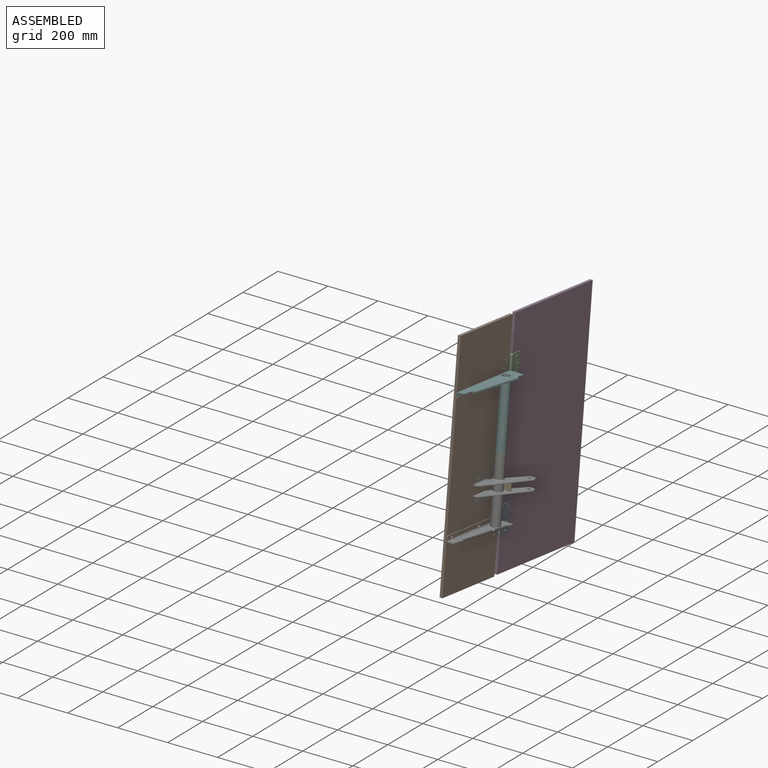
[diagram: assembled view]
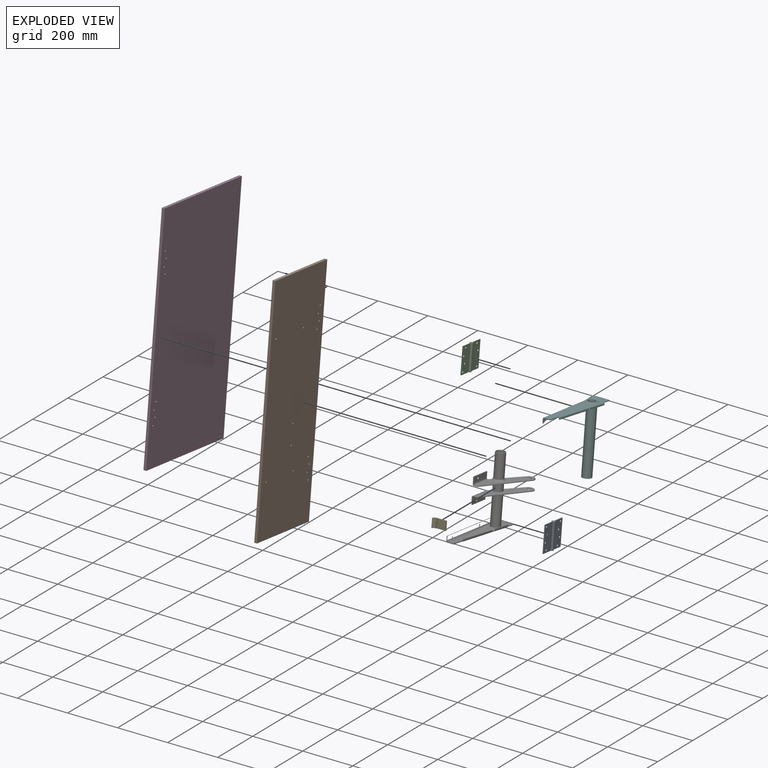
[diagram: exploded view]
GUIDED TOUR — MATED ASSEMBLY WITH SUBASSEMBLIES (Onshape document 43f97b9f7a8c3bc5046a47ca, AutoMate assembly 43f97b9f7a8c3bc5046a47ca_c467d1820c0d632e73bb7d85_4839b0d3525e1f33f01944b1_default)

This assembly has 11 component occurrences arranged in 7 top-level units: 5 individual components plus 2 subassemblies (S0, S1). The tour has two levels: first the top level, where each subassembly is treated as one rigid unit; then each subassembly is toured internally in its own section (nesting deeper than one subassembly level is flattened into its subassembly's section).

Components are labeled P0..P10 across the whole record; subassembly units are labeled S0..S1. A mate is a constraint between two units; its type names the relative motion it leaves free:
  CYLINDRICAL — leaves both rotation about and translation along the listed axis free,
  PARALLEL — keeps the two listed directions parallel.
Axis/direction vectors are unit vectors and 'through' points are millimeter coordinates, both in the assembly's world frame.

TOP-LEVEL MATES (between units; each subassembly's internal mates are listed in its own section)
  1. CYLINDRICAL "Cylindrical 9": P7 <-> S1, axis (-1.000, 0.000, 0.000) through (-171.86, -400.85, 621.26) mm
  2. CYLINDRICAL "Cylindrical 1": S0 <-> P3, axis (-1.000, 0.000, 0.000) through (-174.66, -400.32, 63.24) mm
  3. CYLINDRICAL "Cylindrical 3": S1 <-> P3, axis (-1.000, 0.000, 0.000) through (-174.66, -331.63, 585.66) mm
  4. CYLINDRICAL "Cylindrical 11": P10 <-> S0, axis (-1.000, 0.000, 0.000) through (-171.86, -458.17, 125.63) mm
  5. CYLINDRICAL "Cylindrical 2": S0 <-> P3, axis (-1.000, 0.000, 0.000) through (-174.66, -382.64, 144.48) mm
  6. CYLINDRICAL "Cylindrical 12": P7 <-> P10, axis (0.000, -0.115, -0.993) through (-143.29, -464.18, 377.68) mm
  7. CYLINDRICAL "Cylindrical 8": S0 <-> P1, axis (-1.000, 0.000, 0.000) through (-174.66, -463.20, 153.75) mm
  8. CYLINDRICAL "Cylindrical 5": S1 <-> P1, axis (-1.000, 0.000, 0.000) through (-174.66, -394.49, 676.27) mm
  9. CYLINDRICAL "Cylindrical 6": P1 <-> S1, axis (1.000, 0.000, 0.000) through (-171.86, -412.17, 595.03) mm
  10. CYLINDRICAL "Cylindrical 4": P3 <-> S1, axis (1.000, 0.000, 0.000) through (-174.66, -330.30, 668.80) mm
  11. CYLINDRICAL "Cylindrical 7": S0 <-> P1, axis (-1.000, 0.000, 0.000) through (-174.66, -464.53, 70.61) mm
  12. CYLINDRICAL "Cylindrical 10": P7 <-> P1, axis (-1.000, 0.000, 0.000) through (-171.87, -646.86, 649.70) mm
  13. PARALLEL "Parallel 1": P10 <-> P5, direction (0.000, 0.115, 0.993) through (-120.14, -474.88, 242.62) mm

TOP-LEVEL ASSEMBLY ORDER
  1. P10 — the base component [order verified]
  2. P5 [order verified]
  3. S0 [order verified]
  4. P7 [order verified]
  5. S1 [order verified]
  6. P1 [order verified]
  7. P3 [order verified]
Order-tag legend:
  [order verified] — this step's position reverses a verified removal order: the component was checked to insert without passing through the ones already placed.

Of the 11 component occurrences, 6 carry the full construction recipe — the FeatureScript program that regenerates the part's solid from scratch; the rest are supplied as boundary geometry only. Each toured unit is shown spotlighted twice — assembled, then exploded with a leader line back to its socket (green = recipe-attached component, orange = geometry-only, blue = subassembly unit; the rest desaturated gray).
NOTE — this tour is split across 2 documents so each fits a 32k-token context. This is document 1: the component sections continue in the remaining 1 document, each repeating the header above.
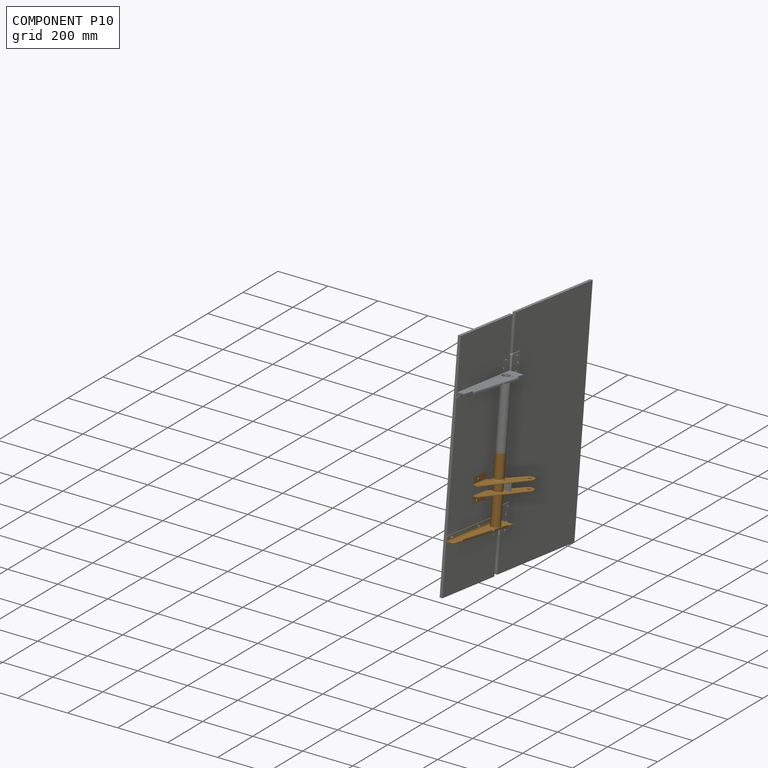
[diagram: component P10 — assembled]
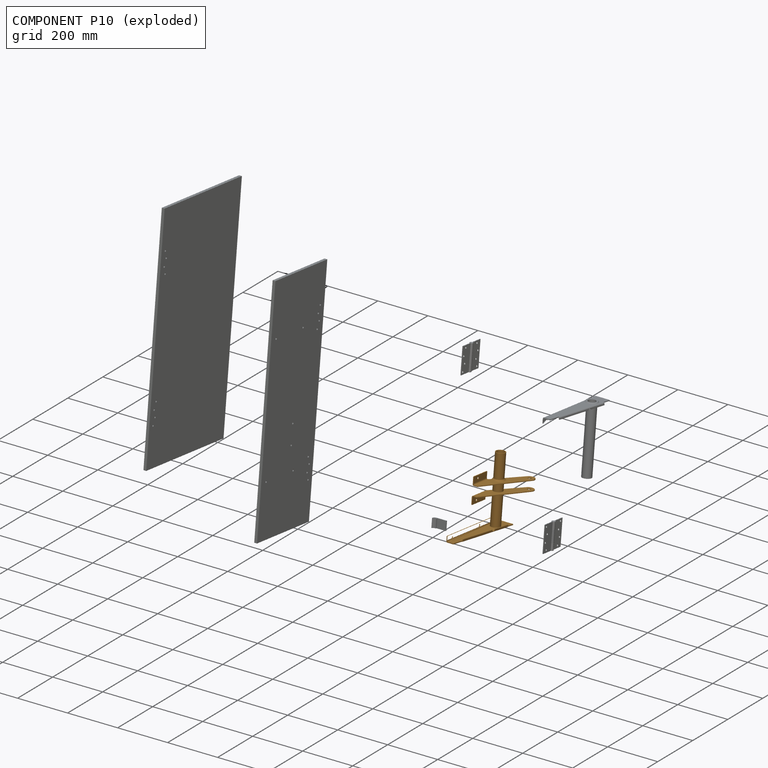
[diagram: component P10 — exploded]
COMPONENT P10 — geometry summary (no construction recipe available for this part):
  bounding box: 421.7 x 265.2 x 116.4 mm
  B-rep topology: 0 solids, 77 faces, 474 edges
  volume: 230272 mm^3 (2% of its bounding box)
Held by: CYLINDRICAL mate "Cylindrical 11" to P0; CYLINDRICAL mate "Cylindrical 12" to P7; PARALLEL mate "Parallel 1" to P5.
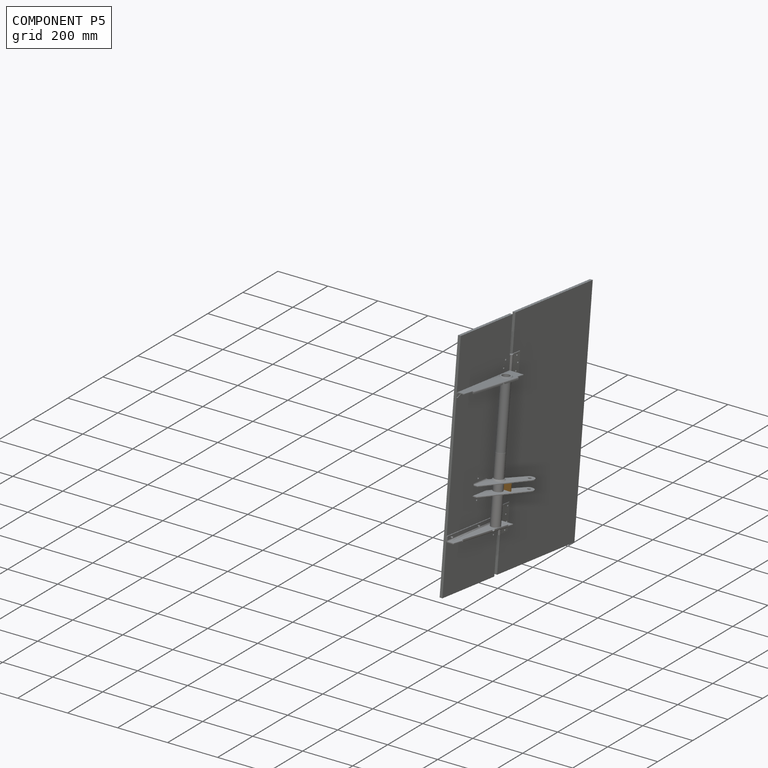
[diagram: component P5 — assembled]
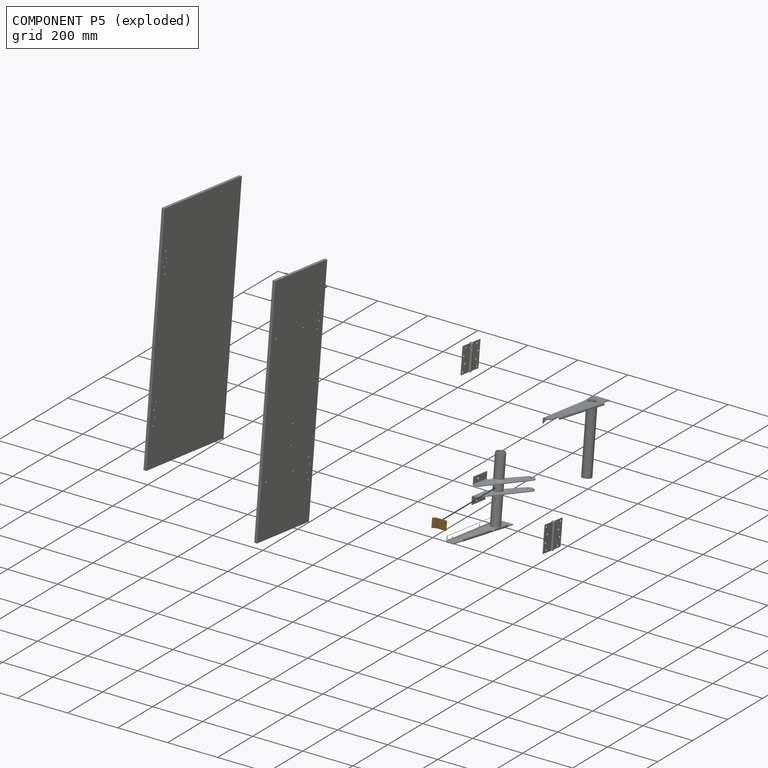
[diagram: component P5 — exploded]
COMPONENT P5 — geometry summary (no construction recipe available for this part):
  bounding box: 50.8 x 34.9 x 13.1 mm
  B-rep topology: 1 solid, 9 faces, 42 edges
  volume: 7441 mm^3 (32% of its bounding box)
  symmetry: mirror-symmetric across its y mid-plane
Held by: PARALLEL mate "Parallel 1" to P10.
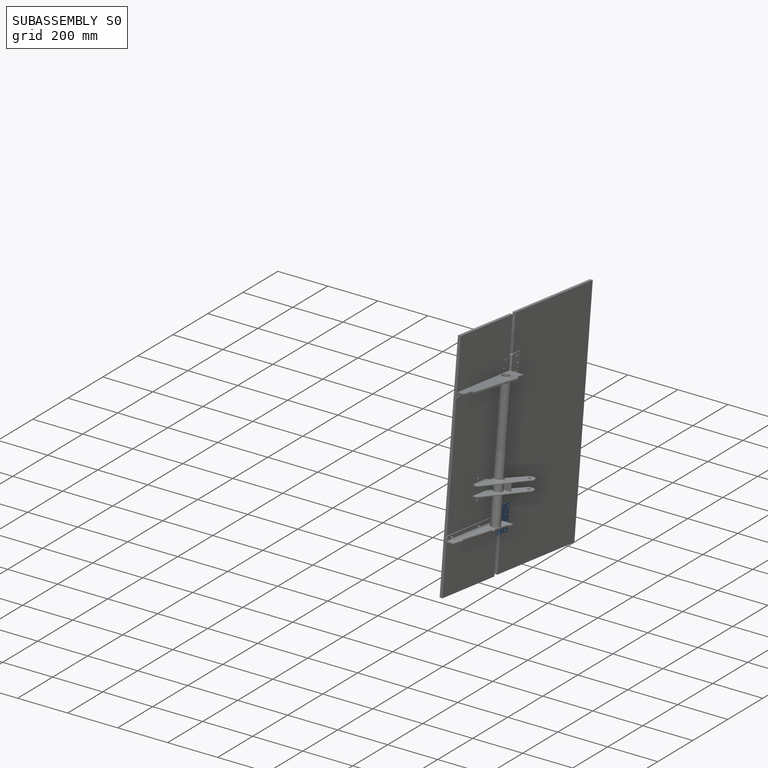
[diagram: subassembly S0 — assembled]
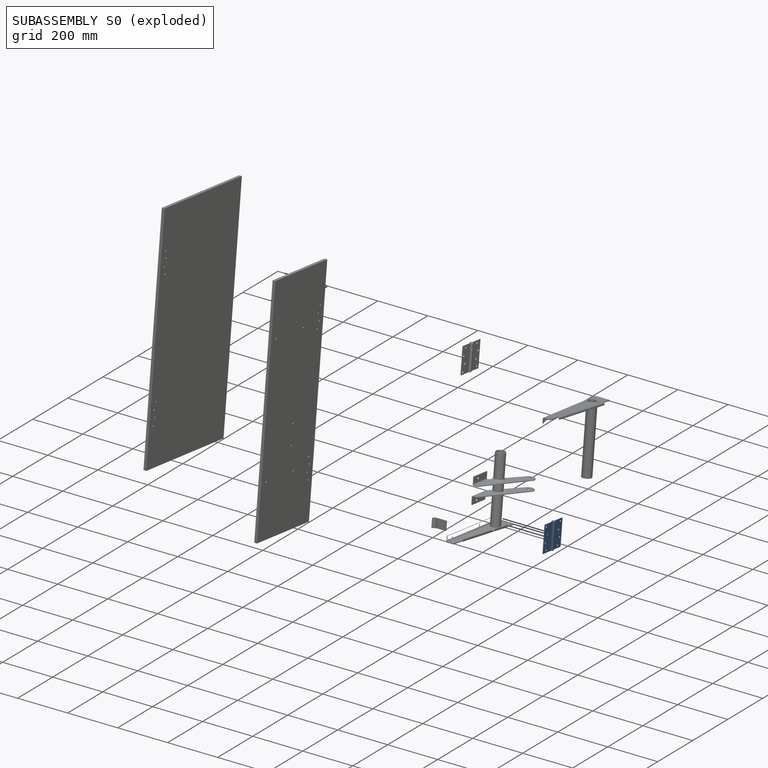
[diagram: subassembly S0 — exploded]
SUBASSEMBLY S0 — 3 components (P0, P6, P9), of which 2 recipe-attached; toured below.
Held by: CYLINDRICAL mate "Cylindrical 1" to P3; CYLINDRICAL mate "Cylindrical 11" to P10; CYLINDRICAL mate "Cylindrical 2" to P3; CYLINDRICAL mate "Cylindrical 8" to P1; CYLINDRICAL mate "Cylindrical 7" to P1.
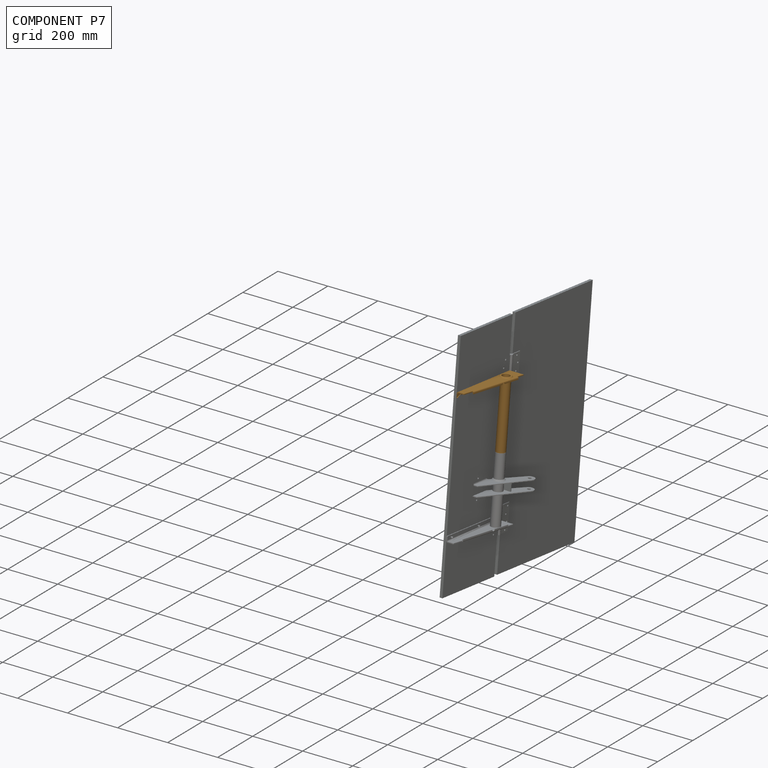
[diagram: component P7 — assembled]
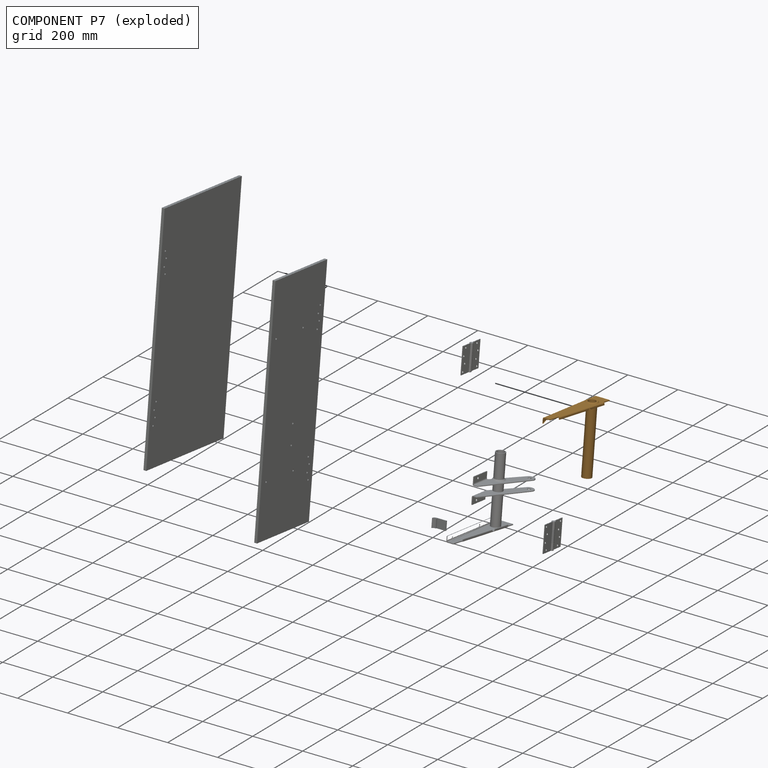
[diagram: component P7 — exploded]
COMPONENT P7 — geometry summary (no construction recipe available for this part):
  bounding box: 421.7 x 265.2 x 69.6 mm
  B-rep topology: 0 solids, 39 faces, 277 edges
  volume: 186237 mm^3 (2% of its bounding box)
Held by: CYLINDRICAL mate "Cylindrical 9" to P2; CYLINDRICAL mate "Cylindrical 12" to P10; CYLINDRICAL mate "Cylindrical 10" to P1.
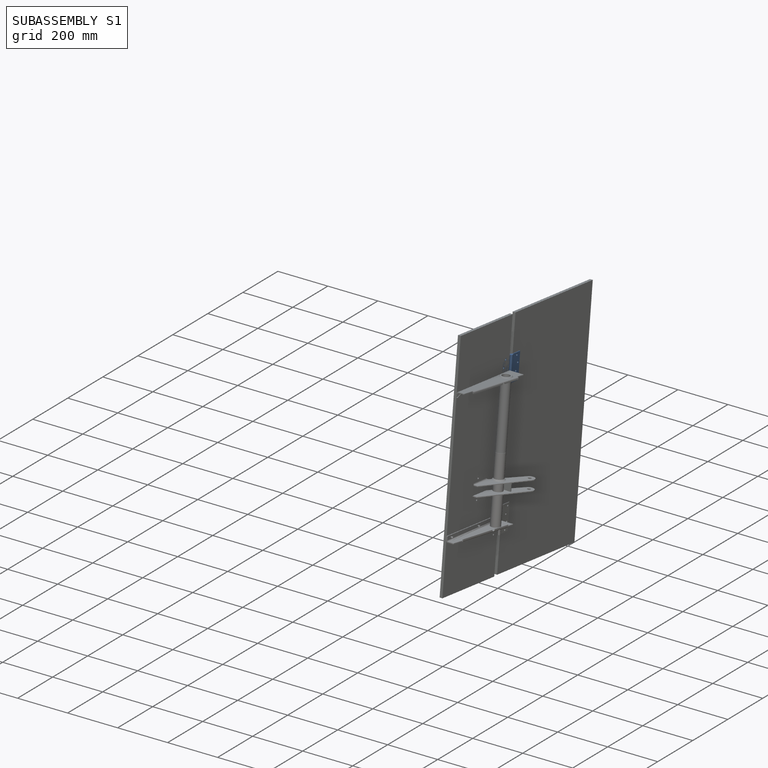
[diagram: subassembly S1 — assembled]
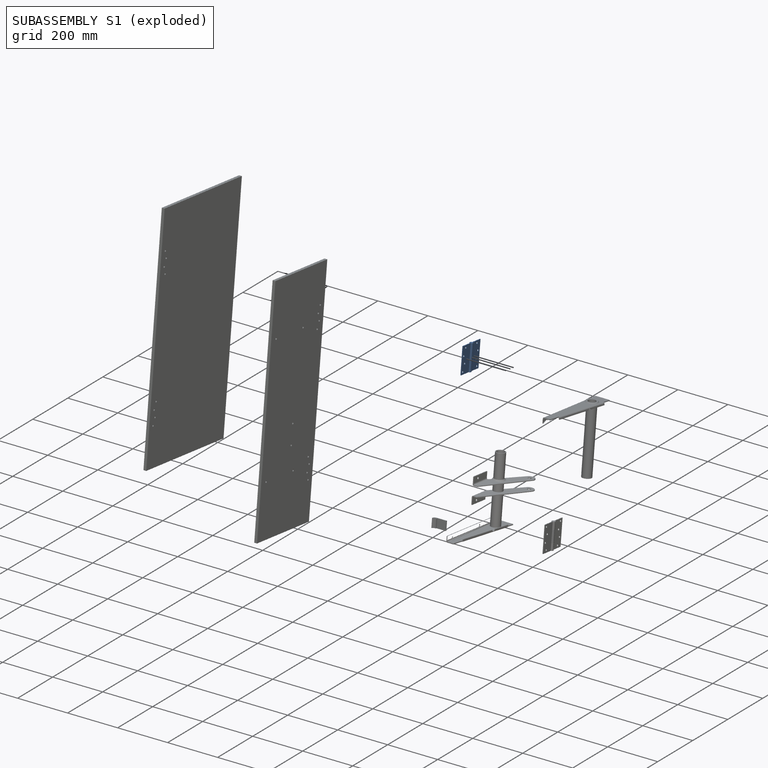
[diagram: subassembly S1 — exploded]
SUBASSEMBLY S1 — 3 components (P2, P4, P8), of which 2 recipe-attached; toured below.
Held by: CYLINDRICAL mate "Cylindrical 9" to P7; CYLINDRICAL mate "Cylindrical 3" to P3; CYLINDRICAL mate "Cylindrical 5" to P1; CYLINDRICAL mate "Cylindrical 6" to P1; CYLINDRICAL mate "Cylindrical 4" to P3.
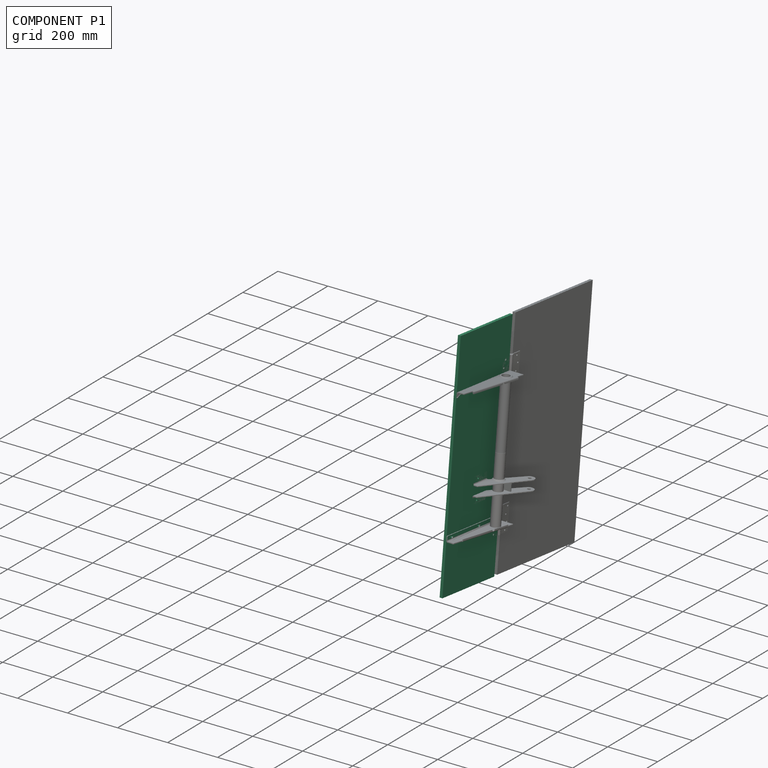
[diagram: component P1 — assembled]
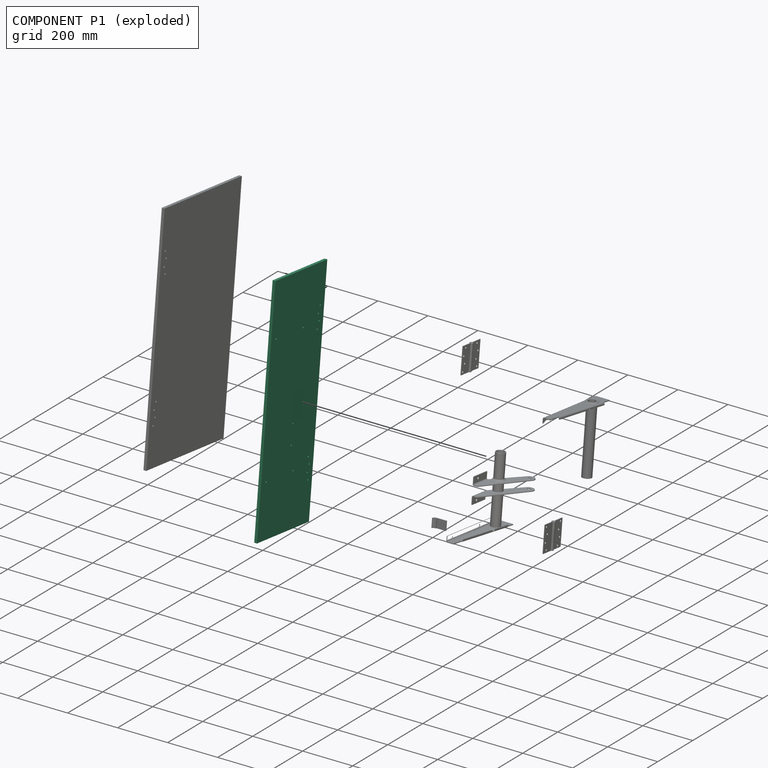
[diagram: component P1 — exploded]
COMPONENT P1 — recipe-attached (CADFS 00646358, mesh-verified: the recipe's output STEP matches this component's geometry to below the mesh-comparison resolution (tessellation chordal tolerance ~1.44 mm)).
Held by: CYLINDRICAL mate "Cylindrical 8" to P0; CYLINDRICAL mate "Cylindrical 5" to P2; CYLINDRICAL mate "Cylindrical 6" to P2; CYLINDRICAL mate "Cylindrical 7" to P0; CYLINDRICAL mate "Cylindrical 10" to P7.
Construction recipe (FeatureScript — the CAD program that rebuilds this solid; sketch coordinates are in the units given by the * unit suffixes, e.g. mm):

FeatureScript 1511;
import(path : "onshape/std/geometry.fs", version : "1511.0");
import(path : "onshape/std/common.fs", version : "1511.0");
const mm = millimeter;
const VERTEX = EntityType.VERTEX;
const EDGE = EntityType.EDGE;
const FACE = EntityType.FACE;
const BODY = EntityType.BODY;
function v(x, y){return vector(x, y);}
function OD(order){return orderDisambiguation(order);}
function OSD(set){return originalSetDisambiguation(set);}
function TD(topology){return topologyDisambiguation(topology);}
function TDD(query){return trueDependencyDisambiguation(query);}
function sQuery(a, b, c) {return sketchEntityQuery(a, b, c);}

annotation { "Feature Type Name" : "Feature", "Feature Type Description" : "" }
export const myFeature = defineFeature(function(context is Context, id is Id, definition is map)
    precondition{}
    {
        {
            var Q0;
            Q0=qCreatedBy(makeId("Top.planeOp"),FACE);
            var sketch = newSketch(context, id + "F0", { "sketchPlane" : qUnion([Q0])});
            skLineSegment(sketch, "E0.bottom", {"start": v(-149.22, 457.2) * mm, "end": v(149.23, 457.2) * mm});
            skLineSegment(sketch, "E0.top", {"start": v(-149.22, -457.2) * mm, "end": v(149.23, -457.2) * mm});
            skLineSegment(sketch, "E0.left", {"start": v(-149.22, 457.2) * mm, "end": v(-149.22, -457.2) * mm});
            skLineSegment(sketch, "E0.right", {"start": v(149.23, 457.2) * mm, "end": v(149.23, -457.2) * mm});
            skSolve(sketch);
        }
        {
            var Q0;
            Q0=makeQuery(id+"F0.imprint","IMPRINT",FACE,{"disambiguationData":[TD([[makeQuery(id+"F0.imprint","IMPRINT",EDGE,{"derivedFrom":sQuery(id+"F0.wireOp",EDGE,"E0.bottom")}),-1.0]])]});
            extrude(context, id + "F1", {"entities" : qUnion([Q0]), "depth" : 11.1 * mm, "offsetDistance" : 25.4 * mm});
        }
        {
            var Q0;
            Q0=makeQuery(id+"F1.opExtrude","CAP_FACE",FACE,{"disambiguationData":[OSD([sQuery(id+"F0.wireOp",EDGE,"E0.bottom"),sQuery(id+"F0.wireOp",EDGE,"E0.top"),sQuery(id+"F0.wireOp",EDGE,"E0.left"),sQuery(id+"F0.wireOp",EDGE,"E0.right")])],"isStart":false});
            var sketch = newSketch(context, id + "F2", { "sketchPlane" : qUnion([Q0])});
            skPoint(sketch, "E1", {"position": v(127, -304.65) * mm});
            skPoint(sketch, "E2", {"position": v(118.77, 222.31) * mm});
            skPoint(sketch, "E3", {"position": v(127, -249.28) * mm});
            skPoint(sketch, "E4", {"position": v(118.77, 277.7) * mm});
            skPoint(sketch, "E5", {"position": v(127, 305.05) * mm});
            skPoint(sketch, "E6", {"position": v(127, 249.67) * mm});
            skPoint(sketch, "E7", {"position": v(118.77, -221.9) * mm});
            skPoint(sketch, "E8", {"position": v(118.77, -277.3) * mm});
            skPoint(sketch, "E9", {"position": v(34.8, 249.67) * mm});
            skPoint(sketch, "E10", {"position": v(-120.65, 249.67) * mm});
            skPoint(sketch, "E11", {"position": v(34.8, -249.28) * mm});
            skPoint(sketch, "E12", {"position": v(-120.65, -249.28) * mm});
            skPoint(sketch, "E13", {"position": v(13.34, -155.68) * mm});
            skPoint(sketch, "E14", {"position": v(13.34, -79.35) * mm});
            skSolve(sketch);
        }
        {
            var Q0;
            Q0=sQuery(id+"F2.wireOp",VERTEX,"E1");
            var Q1;
            Q1=sQuery(id+"F2.wireOp",VERTEX,"E8");
            var Q2;
            Q2=sQuery(id+"F2.wireOp",VERTEX,"E3");
            var Q3;
            Q3=sQuery(id+"F2.wireOp",VERTEX,"E7");
            var Q4;
            Q4=sQuery(id+"F2.wireOp",VERTEX,"E2");
            var Q5;
            Q5=sQuery(id+"F2.wireOp",VERTEX,"E6");
            var Q6;
            Q6=sQuery(id+"F2.wireOp",VERTEX,"E4");
            var Q7;
            Q7=sQuery(id+"F2.wireOp",VERTEX,"E5");
            var Q8;
            Q8=sQuery(id+"F2.wireOp",VERTEX,"E9");
            var Q9;
            Q9=sQuery(id+"F2.wireOp",VERTEX,"E10");
            var Q10;
            Q10=sQuery(id+"F2.wireOp",VERTEX,"E11");
            var Q11;
            Q11=sQuery(id+"F2.wireOp",VERTEX,"E12");
            var Q12;
            Q12=sQuery(id+"F2.wireOp",VERTEX,"E13");
            var Q13;
            Q13=sQuery(id+"F2.wireOp",VERTEX,"E14");
            var Q14;
            Q14=makeQuery(id+"F1.opExtrude","SWEPT_BODY",BODY,{"disambiguationData":[OSD([sQuery(id+"F0.wireOp",EDGE,"E0.bottom"),sQuery(id+"F0.wireOp",EDGE,"E0.top"),sQuery(id+"F0.wireOp",EDGE,"E0.left"),sQuery(id+"F0.wireOp",EDGE,"E0.right")])]});
            hole(context, id + "F3", {"style" : HoleStyle.SIMPLE, "endStyle" : HoleEndStyle.BLIND, "holeDiameter" : 7.62 * mm, "majorDiameter" : 6.35 * mm, "holeDepth" : 12.7 * mm, "isTappedThrough" : true, "tappedDepth" : 12.7 * mm, "tapClearance" : 3, "locations" : qUnion([Q0, Q1, Q2, Q3, Q4, Q5, Q6, Q7, Q8, Q9, Q10, Q11, Q12, Q13]), "scope" : qUnion([Q14])});
        }
    });
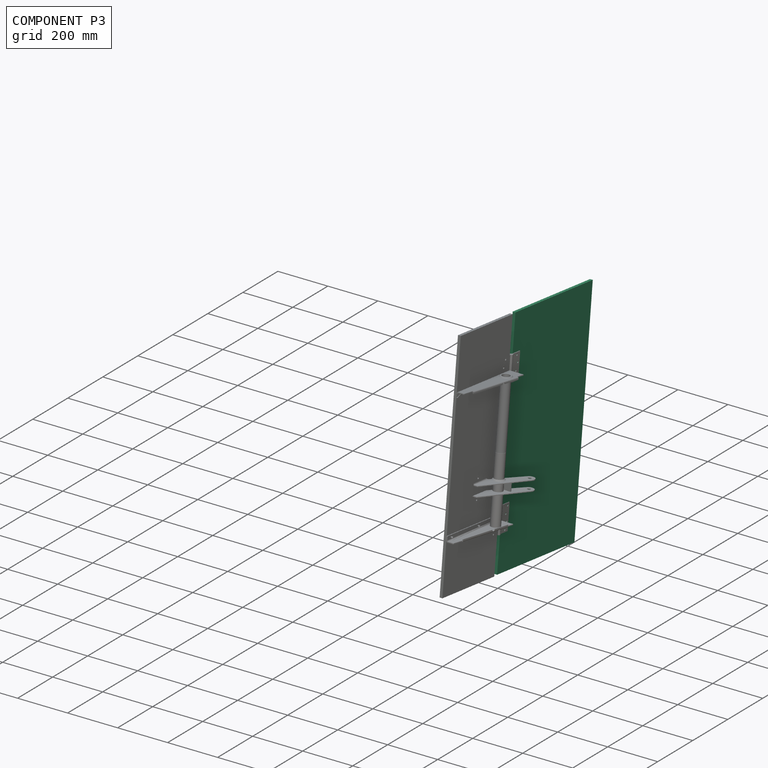
[diagram: component P3 — assembled]
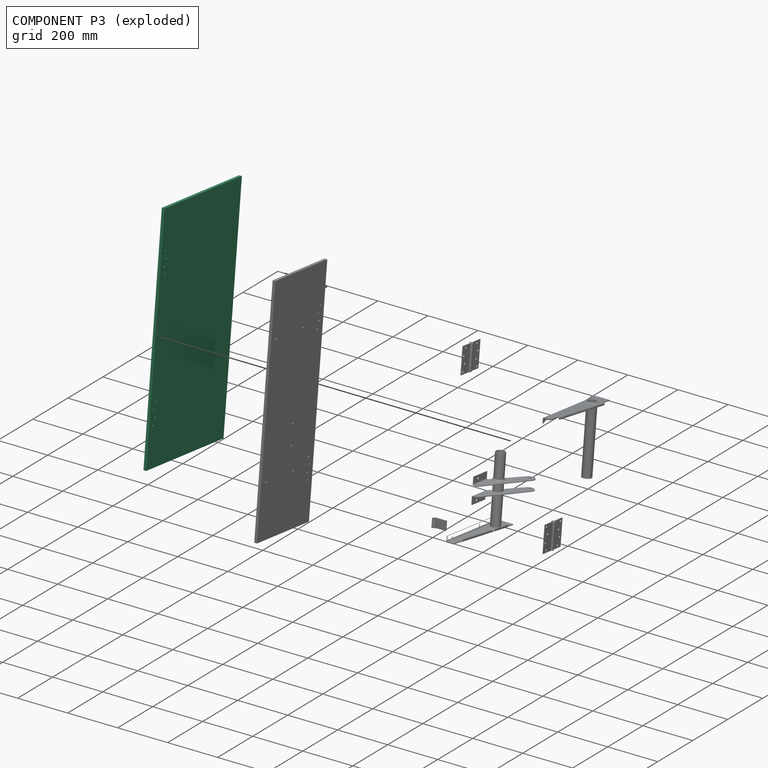
[diagram: component P3 — exploded]
COMPONENT P3 — recipe-attached (CADFS 00657520, mesh-verified: the recipe's output STEP matches this component's geometry to below the mesh-comparison resolution (tessellation chordal tolerance ~1.53 mm)).
Held by: CYLINDRICAL mate "Cylindrical 1" to P0; CYLINDRICAL mate "Cylindrical 3" to P2; CYLINDRICAL mate "Cylindrical 2" to P0; CYLINDRICAL mate "Cylindrical 4" to P2.
Construction recipe (FeatureScript — the CAD program that rebuilds this solid; sketch coordinates are in the units given by the * unit suffixes, e.g. mm):

FeatureScript 1511;
import(path : "onshape/std/geometry.fs", version : "1511.0");
import(path : "onshape/std/common.fs", version : "1511.0");
const mm = millimeter;
const VERTEX = EntityType.VERTEX;
const EDGE = EntityType.EDGE;
const FACE = EntityType.FACE;
const BODY = EntityType.BODY;
function v(x, y){return vector(x, y);}
function OD(order){return orderDisambiguation(order);}
function OSD(set){return originalSetDisambiguation(set);}
function TD(topology){return topologyDisambiguation(topology);}
function TDD(query){return trueDependencyDisambiguation(query);}
function sQuery(a, b, c) {return sketchEntityQuery(a, b, c);}

annotation { "Feature Type Name" : "Feature", "Feature Type Description" : "" }
export const myFeature = defineFeature(function(context is Context, id is Id, definition is map)
    precondition{}
    {
        {
            var Q0;
            Q0=qCreatedBy(makeId("Top.planeOp"),FACE);
            var sketch = newSketch(context, id + "F0", { "sketchPlane" : qUnion([Q0])});
            skLineSegment(sketch, "E0.bottom", {"start": v(-222.25, 457.2) * mm, "end": v(222.25, 457.2) * mm});
            skLineSegment(sketch, "E0.top", {"start": v(-222.25, -457.2) * mm, "end": v(222.25, -457.2) * mm});
            skLineSegment(sketch, "E0.left", {"start": v(-222.25, 457.2) * mm, "end": v(-222.25, -457.2) * mm});
            skLineSegment(sketch, "E0.right", {"start": v(222.25, 457.2) * mm, "end": v(222.25, -457.2) * mm});
            skSolve(sketch);
        }
        {
            var Q0;
            Q0 = qSketchRegion(id + "F0", true);
            extrude(context, id + "F1", {"entities" : qUnion([Q0]), "depth" : 11.1 * mm, "offsetDistance" : 25.4 * mm});
        }
        {
            var Q0;
            Q0=makeQuery(id+"F1.opExtrude","CAP_FACE",FACE,{"disambiguationData":[OSD([sQuery(id+"F0.wireOp",EDGE,"E0.bottom"),sQuery(id+"F0.wireOp",EDGE,"E0.top"),sQuery(id+"F0.wireOp",EDGE,"E0.left"),sQuery(id+"F0.wireOp",EDGE,"E0.right")])],"isStart":false});
            var sketch = newSketch(context, id + "F2", { "sketchPlane" : qUnion([Q0])});
            skPoint(sketch, "E1", {"position": v(-200.02, 304.8) * mm});
            skPoint(sketch, "E2", {"position": v(-191.8, 277.44) * mm});
            skPoint(sketch, "E3", {"position": v(-200.02, 249.42) * mm});
            skPoint(sketch, "E4", {"position": v(-191.8, 222.06) * mm});
            skPoint(sketch, "E5", {"position": v(-200.02, -304.8) * mm});
            skPoint(sketch, "E6", {"position": v(-200.02, -249.42) * mm});
            skPoint(sketch, "E7", {"position": v(-191.8, -277.44) * mm});
            skPoint(sketch, "E8", {"position": v(-191.8, -222.06) * mm});
            skSolve(sketch);
        }
        {
            var Q0;
            Q0=sQuery(id+"F2.wireOp",VERTEX,"E2");
            var Q1;
            Q1=sQuery(id+"F2.wireOp",VERTEX,"E1");
            var Q2;
            Q2=sQuery(id+"F2.wireOp",VERTEX,"E3");
            var Q3;
            Q3=sQuery(id+"F2.wireOp",VERTEX,"E4");
            var Q4;
            Q4=sQuery(id+"F2.wireOp",VERTEX,"E8");
            var Q5;
            Q5=sQuery(id+"F2.wireOp",VERTEX,"E6");
            var Q6;
            Q6=sQuery(id+"F2.wireOp",VERTEX,"E7");
            var Q7;
            Q7=sQuery(id+"F2.wireOp",VERTEX,"E5");
            var Q8;
            Q8=makeQuery(id+"F1.opExtrude","SWEPT_BODY",BODY,{"disambiguationData":[OSD([sQuery(id+"F0.wireOp",EDGE,"E0.bottom"),sQuery(id+"F0.wireOp",EDGE,"E0.top"),sQuery(id+"F0.wireOp",EDGE,"E0.left"),sQuery(id+"F0.wireOp",EDGE,"E0.right")])]});
            hole(context, id + "F3", {"style" : HoleStyle.SIMPLE, "endStyle" : HoleEndStyle.BLIND, "holeDiameter" : 7.62 * mm, "majorDiameter" : 6.35 * mm, "holeDepth" : 12.7 * mm, "isTappedThrough" : true, "tappedDepth" : 12.7 * mm, "tapClearance" : 3, "locations" : qUnion([Q0, Q1, Q2, Q3, Q4, Q5, Q6, Q7]), "scope" : qUnion([Q8])});
        }
    });
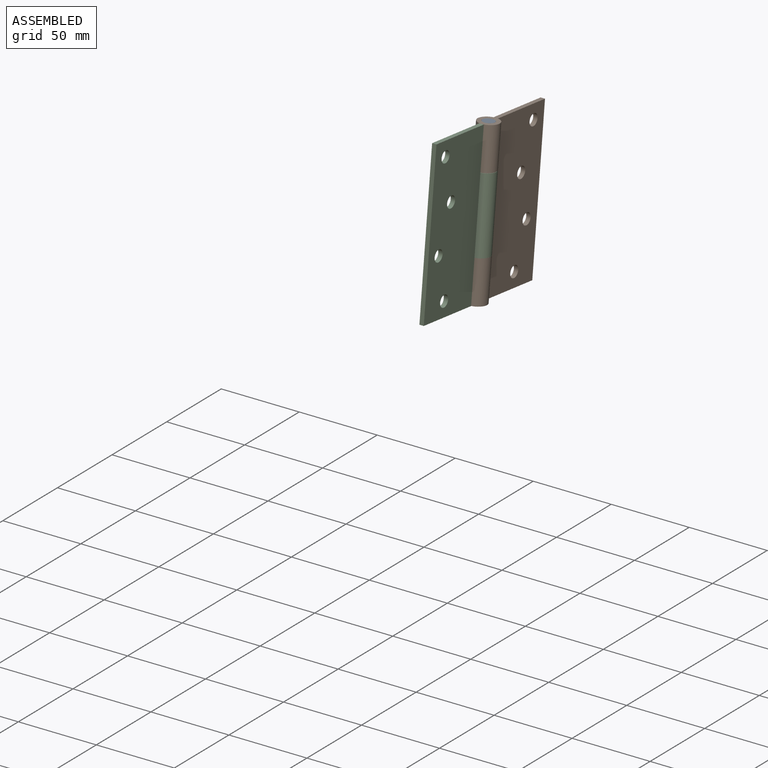
[diagram: subassembly S0 — assembled view]
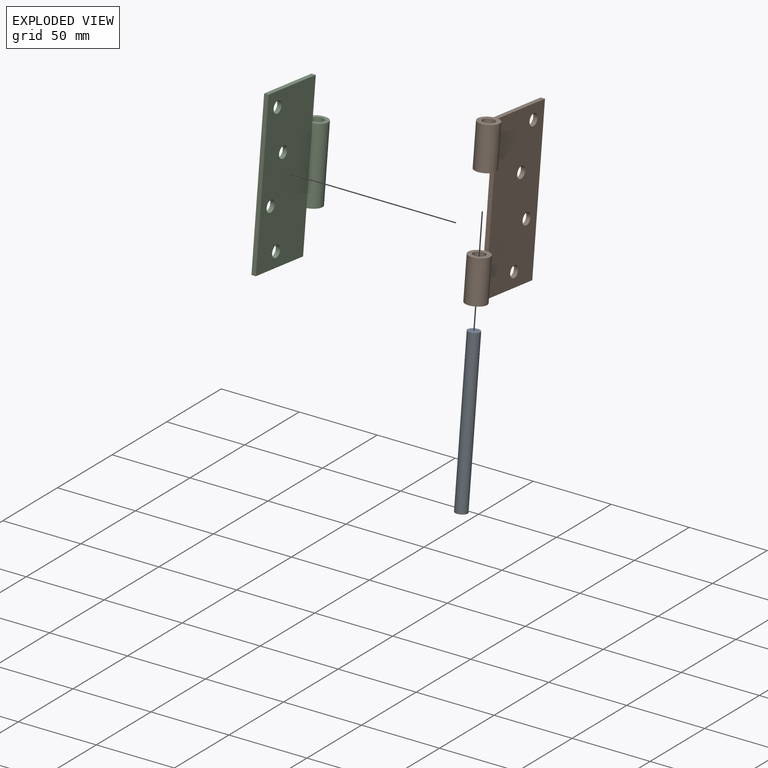
[diagram: subassembly S0 — exploded view]
SUBASSEMBLY S0 TOUR — 3 components, shown here in isolation at its own camera.

INTERNAL MATES
  1. CYLINDRICAL "Cylindrical 1": P6 <-> P9, axis (0.000, 0.115, 0.993) through (-173.26, -430.30, 84.42) mm
  2. PARALLEL "Parallel 2": P6 <-> P9, direction (0.000, 0.115, 0.993) through (-173.26, -430.30, 84.42) mm
  3. CYLINDRICAL "Cylindrical 2": P0 <-> P6, axis (0.000, 0.115, 0.993) through (-173.26, -421.75, 158.40) mm

ASSEMBLY ORDER (within the subassembly)
  1. P6 — the base component [order heuristic]
  2. P0 — core [order heuristic]
  3. P9 [order verified]
Order-tag legend:
  [order verified] — this step's position reverses a verified removal order: the component was checked to insert without passing through the ones already placed.
  [order heuristic] — the first 2 components form the assembly's core: parts whose collision-free extraction could not be verified, listed in mate-graph order.
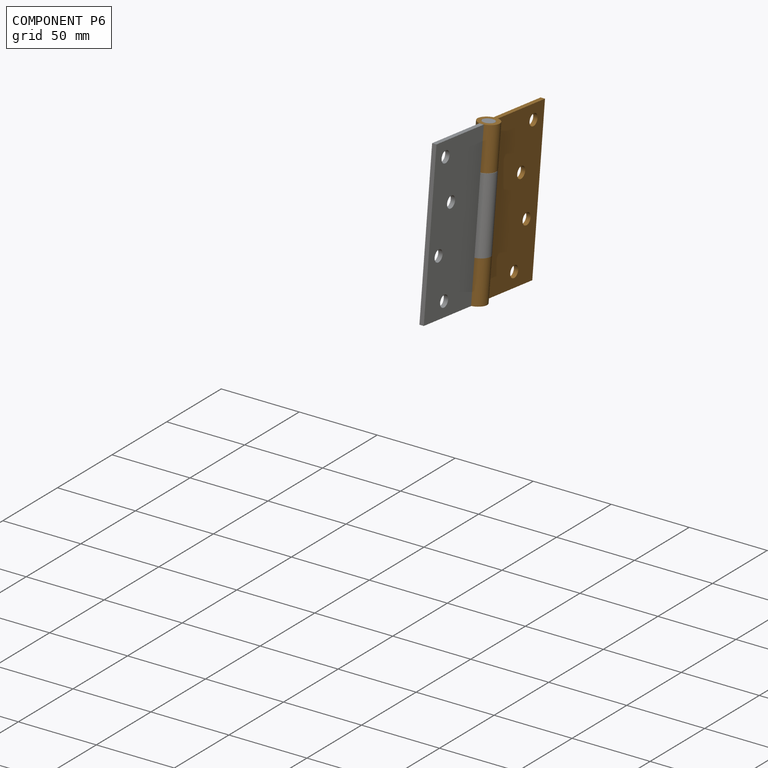
[diagram: component P6 — assembled]
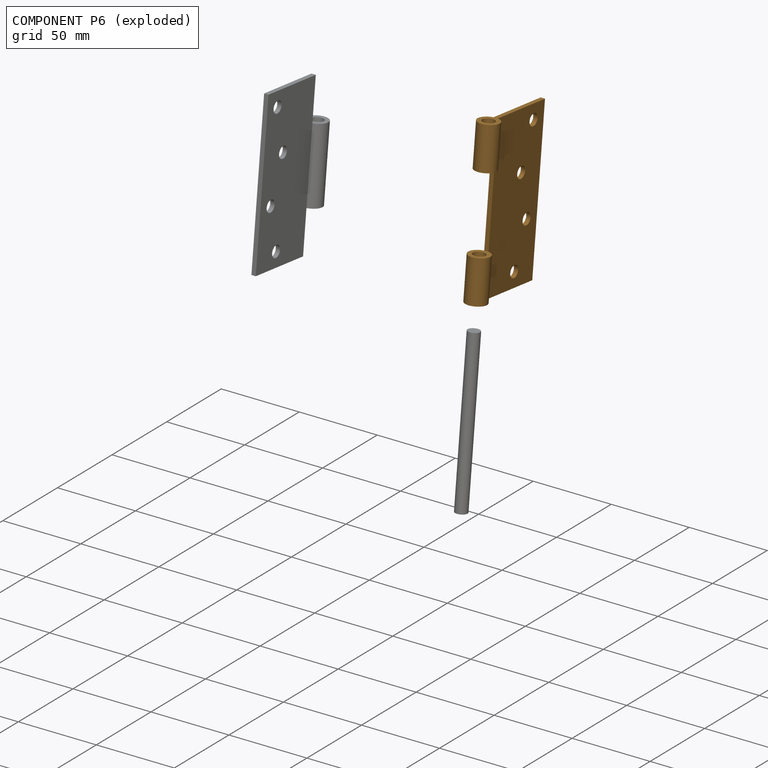
[diagram: component P6 — exploded]
COMPONENT P6 — geometry summary (no construction recipe available for this part):
  bounding box: 101.4 x 56.6 x 13.3 mm
  B-rep topology: 1 solid, 16 faces, 80 edges
  volume: 16778 mm^3 (22% of its bounding box)
  symmetry: mirror-symmetric across its z mid-plane
Held by: CYLINDRICAL mate "Cylindrical 1" to P9; PARALLEL mate "Parallel 2" to P9; CYLINDRICAL mate "Cylindrical 2" to P0.
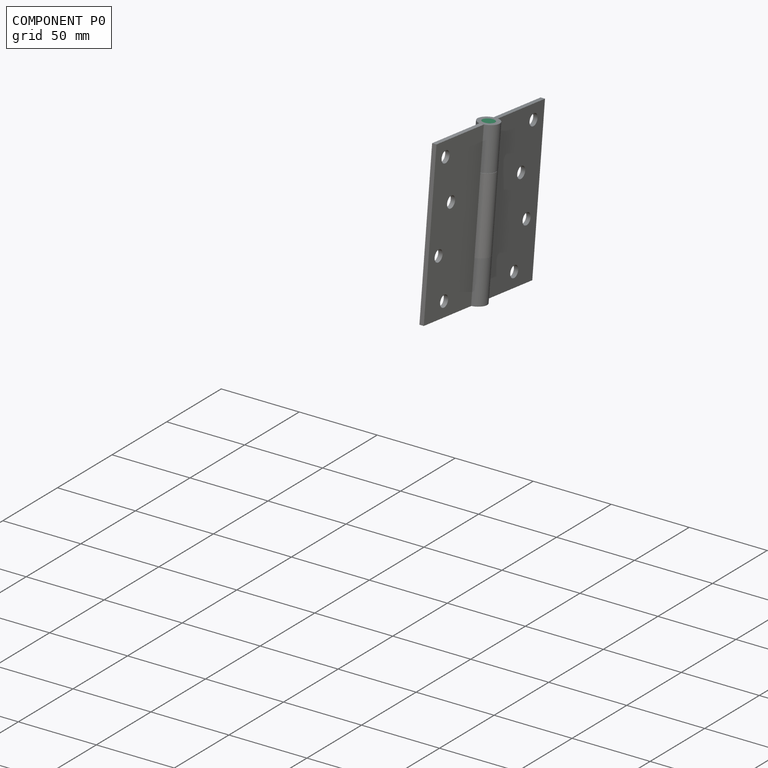
[diagram: component P0 — assembled]
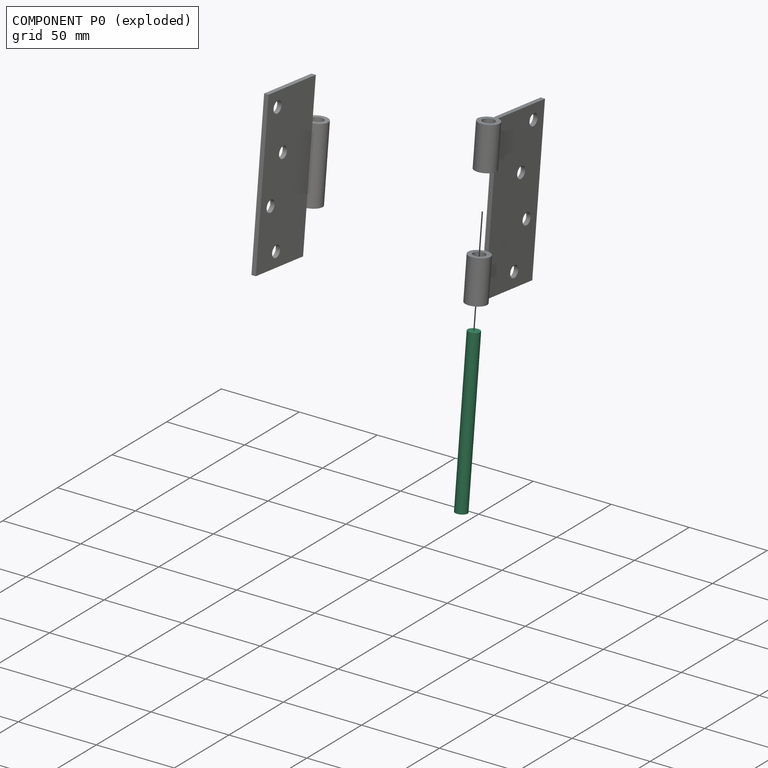
[diagram: component P0 — exploded]
COMPONENT P0 — recipe-attached (CADFS 00647209, mesh-verified: the recipe's output STEP matches this component's geometry to below the mesh-comparison resolution (tessellation chordal tolerance ~0.153 mm)).
Held by: CYLINDRICAL mate "Cylindrical 2" to P6.
Construction recipe (FeatureScript — the CAD program that rebuilds this solid; sketch coordinates are in the units given by the * unit suffixes, e.g. mm):

FeatureScript 1511;
import(path : "onshape/std/geometry.fs", version : "1511.0");
import(path : "onshape/std/common.fs", version : "1511.0");
const mm = millimeter;
const VERTEX = EntityType.VERTEX;
const EDGE = EntityType.EDGE;
const FACE = EntityType.FACE;
const BODY = EntityType.BODY;
function v(x, y){return vector(x, y);}
function OD(order){return orderDisambiguation(order);}
function OSD(set){return originalSetDisambiguation(set);}
function TD(topology){return topologyDisambiguation(topology);}
function TDD(query){return trueDependencyDisambiguation(query);}
function sQuery(a, b, c) {return sketchEntityQuery(a, b, c);}

annotation { "Feature Type Name" : "Feature", "Feature Type Description" : "" }
export const myFeature = defineFeature(function(context is Context, id is Id, definition is map)
    precondition{}
    {
        {
            var Q0;
            Q0=qCreatedBy(makeId("Front.planeOp"),FACE);
            var sketch = newSketch(context, id + "F0", { "sketchPlane" : qUnion([Q0])});
            skCircle(sketch, "E0", {"center": v(0, 0) * mm, "radius": 3.81 * mm});
            skSolve(sketch);
        }
        {
            var Q0;
            Q0 = qSketchRegion(id + "F0", true);
            extrude(context, id + "F1", {"entities" : qUnion([Q0]), "oppositeDirection" : true, "depth" : 50.7 * mm, "offsetDistance" : 25.4 * mm, "hasSecondDirection" : true, "secondDirectionOppositeDirection" : false, "secondDirectionDepth" : 50.7 * mm});
        }
    });
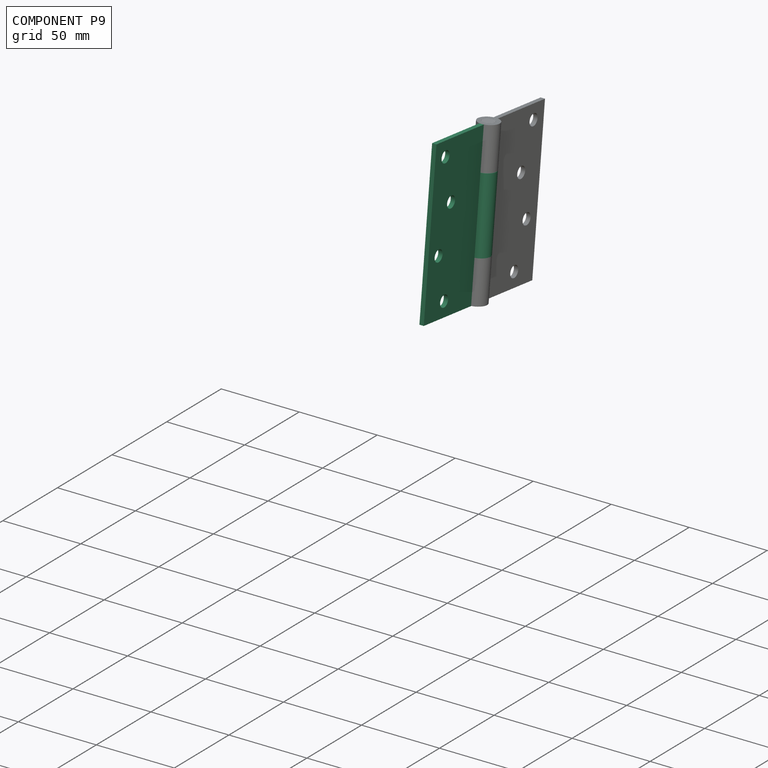
[diagram: component P9 — assembled]
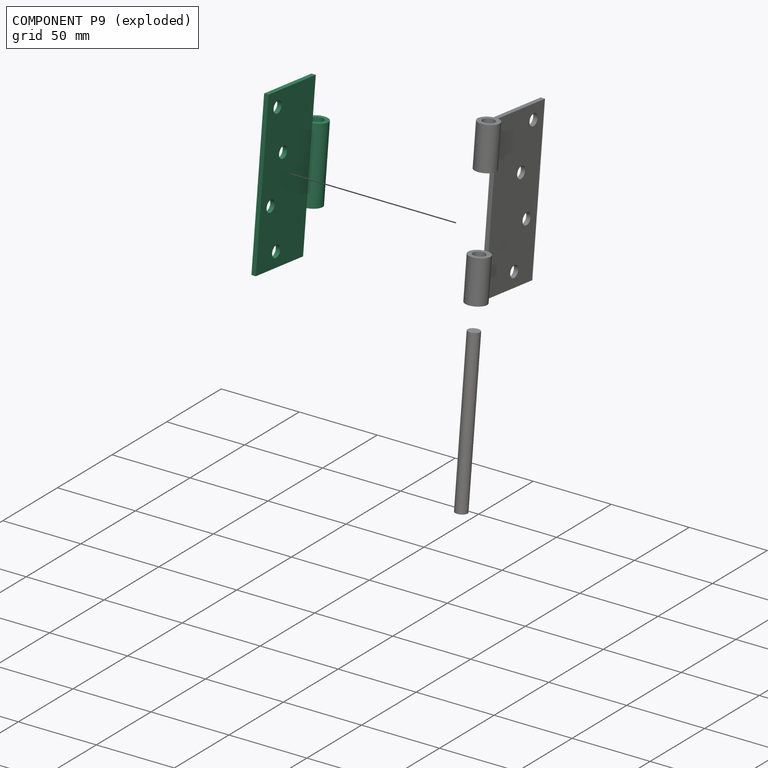
[diagram: component P9 — exploded]
COMPONENT P9 — recipe-attached (CADFS 00647141, mesh-verified: the recipe's output STEP matches this component's geometry to below the mesh-comparison resolution (tessellation chordal tolerance ~0.175 mm)).
Held by: CYLINDRICAL mate "Cylindrical 1" to P6; PARALLEL mate "Parallel 2" to P6.
Construction recipe (FeatureScript — the CAD program that rebuilds this solid; sketch coordinates are in the units given by the * unit suffixes, e.g. mm):

FeatureScript 1511;
import(path : "onshape/std/geometry.fs", version : "1511.0");
import(path : "onshape/std/common.fs", version : "1511.0");
const mm = millimeter;
const VERTEX = EntityType.VERTEX;
const EDGE = EntityType.EDGE;
const FACE = EntityType.FACE;
const BODY = EntityType.BODY;
function v(x, y){return vector(x, y);}
function OD(order){return orderDisambiguation(order);}
function OSD(set){return originalSetDisambiguation(set);}
function TD(topology){return topologyDisambiguation(topology);}
function TDD(query){return trueDependencyDisambiguation(query);}
function sQuery(a, b, c) {return sketchEntityQuery(a, b, c);}

annotation { "Feature Type Name" : "Feature", "Feature Type Description" : "" }
export const myFeature = defineFeature(function(context is Context, id is Id, definition is map)
    precondition{}
    {
        {
            var Q0;
            Q0=qCreatedBy(makeId("Top.planeOp"),FACE);
            var sketch = newSketch(context, id + "F0", { "sketchPlane" : qUnion([Q0])});
            skLineSegment(sketch, "E0.bottom", {"start": v(-50.7, 21.8) * mm, "end": v(50.71, 21.8) * mm});
            skLineSegment(sketch, "E0.top", {"start": v(-50.7, -21.8) * mm, "end": v(50.71, -21.8) * mm});
            skLineSegment(sketch, "E0.left", {"start": v(-50.7, 21.8) * mm, "end": v(-50.7, -21.8) * mm});
            skLineSegment(sketch, "E0.right", {"start": v(50.71, 21.8) * mm, "end": v(50.71, -21.8) * mm});
            skSolve(sketch);
        }
        {
            var Q0;
            Q0 = qSketchRegion(id + "F0", true);
            extrude(context, id + "F1", {"entities" : qUnion([Q0]), "depth" : 2.8 * mm, "offsetDistance" : 25.4 * mm});
        }
        {
            var Q0;
            Q0=qCreatedBy(makeId("Right.planeOp"),FACE);
            var sketch = newSketch(context, id + "F2", { "sketchPlane" : qUnion([Q0])});
            skCircle(sketch, "E1", {"center": v(-28.3, 1.4) * mm, "radius": 6.65 * mm});
            skPoint(sketch, "E2", {"position": v(-21.8, 1.4) * mm});
            skCircle(sketch, "E3.0", {"center": v(-28.3, 1.4) * mm, "radius": 3.86 * mm});
            skSolve(sketch);
        }
        {
            var Q0;
            Q0 = qSketchRegion(id + "F2", true);
            extrude(context, id + "F3", {"entities" : qUnion([Q0]), "operationType" : NewBodyOperationType.ADD, "depth" : 23.72 * mm, "offsetDistance" : 25.4 * mm, "hasSecondDirection" : true, "secondDirectionOppositeDirection" : true, "secondDirectionDepth" : 23.72 * mm});
        }
        {
            var Q0;
            Q0=makeQuery(id+"F1.opExtrude","CAP_FACE",FACE,{"disambiguationData":[OSD([sQuery(id+"F0.wireOp",EDGE,"E0.bottom"),sQuery(id+"F0.wireOp",EDGE,"E0.top"),sQuery(id+"F0.wireOp",EDGE,"E0.left"),sQuery(id+"F0.wireOp",EDGE,"E0.right")])],"isStart":false});
            var sketch = newSketch(context, id + "F4", { "sketchPlane" : qUnion([Q0])});
            skPoint(sketch, "E4", {"position": v(41.38, 12.34) * mm});
            skPoint(sketch, "E5", {"position": v(-14, 12.34) * mm});
            skPoint(sketch, "E6", {"position": v(14.02, 4.1) * mm});
            skPoint(sketch, "E7", {"position": v(-41.36, 4.1) * mm});
            skSolve(sketch);
        }
        {
            var Q0;
            Q0=sQuery(id+"F4.wireOp",VERTEX,"E6");
            var Q1;
            Q1=sQuery(id+"F4.wireOp",VERTEX,"E5");
            var Q2;
            Q2=sQuery(id+"F4.wireOp",VERTEX,"E7");
            var Q3;
            Q3=sQuery(id+"F4.wireOp",VERTEX,"E4");
            var Q4;
            Q4=makeQuery(id+"F1.opExtrude","SWEPT_BODY",BODY,{"disambiguationData":[OSD([sQuery(id+"F0.wireOp",EDGE,"E0.bottom"),sQuery(id+"F0.wireOp",EDGE,"E0.top"),sQuery(id+"F0.wireOp",EDGE,"E0.left"),sQuery(id+"F0.wireOp",EDGE,"E0.right")])]});
            hole(context, id + "F5", {"style" : HoleStyle.SIMPLE, "endStyle" : HoleEndStyle.BLIND, "holeDiameter" : 7.35 * mm, "majorDiameter" : 6.35 * mm, "holeDepth" : 12.7 * mm, "isTappedThrough" : true, "tappedDepth" : 12.7 * mm, "tapClearance" : 3, "locations" : qUnion([Q0, Q1, Q2, Q3]), "scope" : qUnion([Q4])});
        }
    });
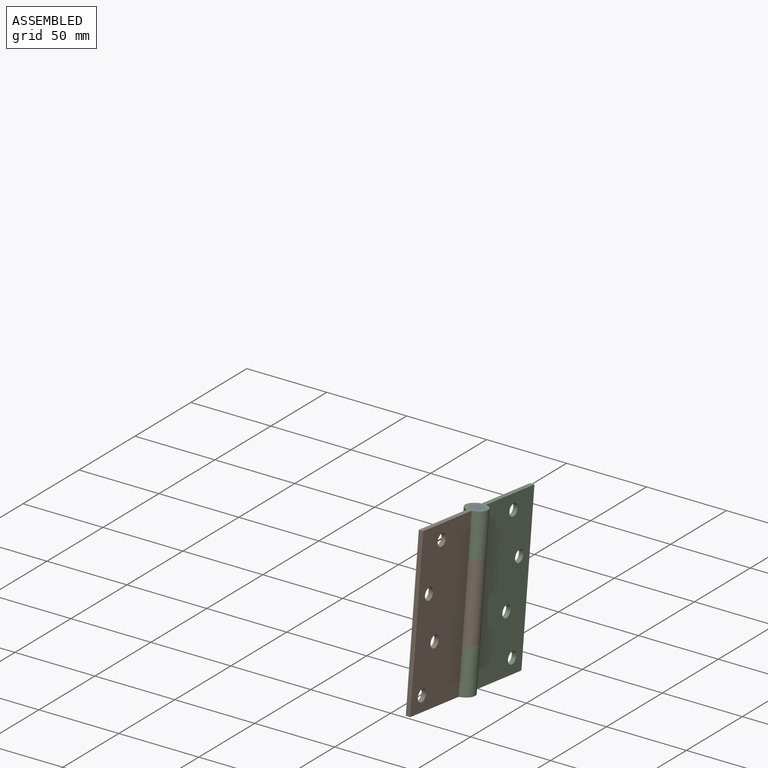
[diagram: subassembly S1 — assembled view]
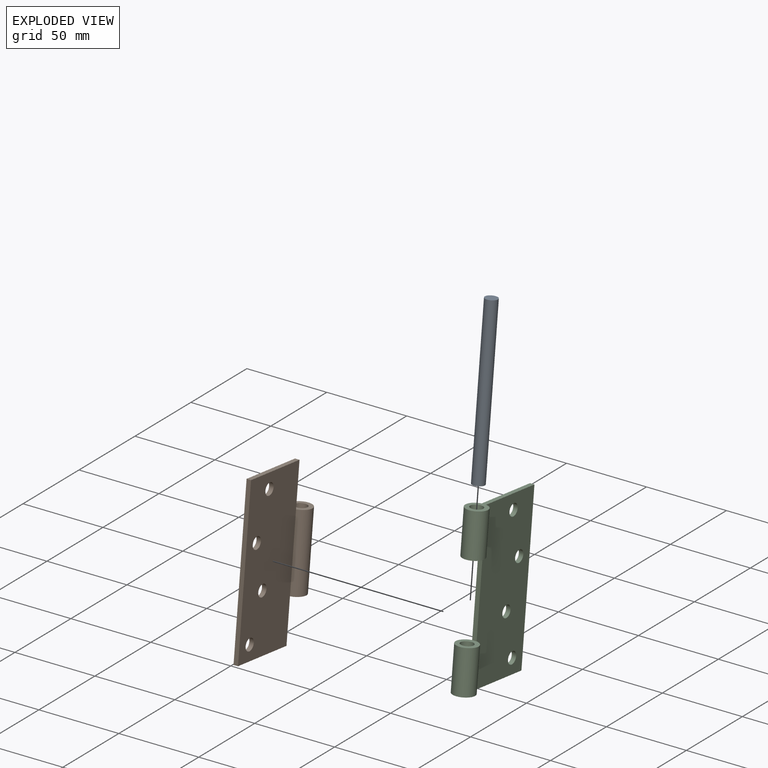
[diagram: subassembly S1 — exploded view]
SUBASSEMBLY S1 TOUR — 3 components, shown here in isolation at its own camera.

INTERNAL MATES
  1. CYLINDRICAL "Cylindrical 1": P8 <-> P4, axis (0.000, -0.115, -0.993) through (-173.26, -364.32, 655.02) mm
  2. CYLINDRICAL "Cylindrical 2": P2 <-> P8, axis (0.000, -0.115, -0.993) through (-173.26, -372.87, 581.03) mm
  3. PARALLEL "Parallel 2": P8 <-> P4, direction (0.000, -0.115, -0.993) through (-173.26, -364.32, 655.02) mm

ASSEMBLY ORDER (within the subassembly)
  1. P8 — the base component [order heuristic]
  2. P2 — core [order heuristic]
  3. P4 [order verified]
(P4 verified with a relaxed clearance tolerance: the source model stores slight part interference there.)
Order-tag legend:
  [order verified] — this step's position reverses a verified removal order: the component was checked to insert without passing through the ones already placed.
  [order heuristic] — the first 2 components form the assembly's core: parts whose collision-free extraction could not be verified, listed in mate-graph order.
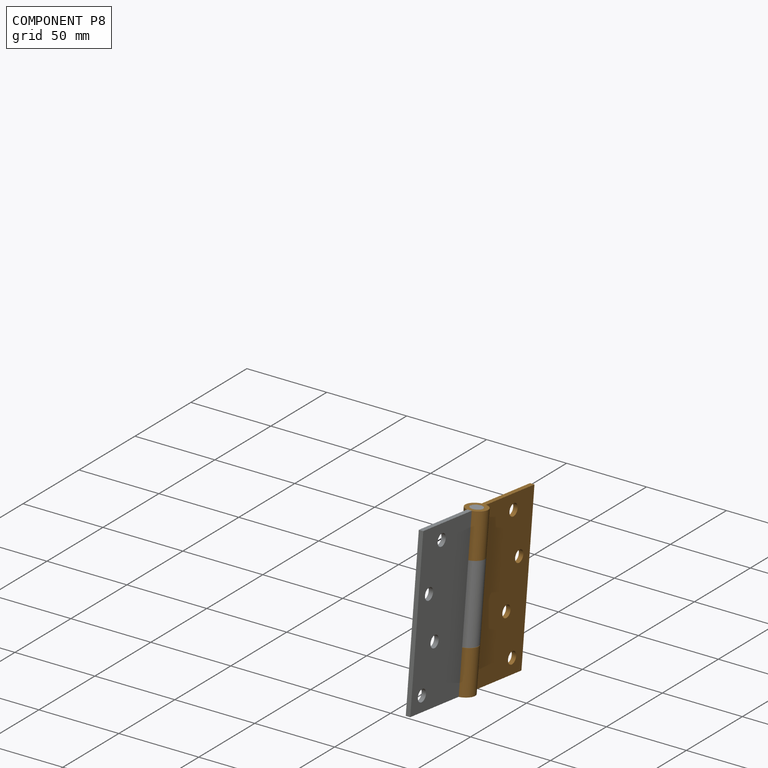
[diagram: component P8 — assembled]
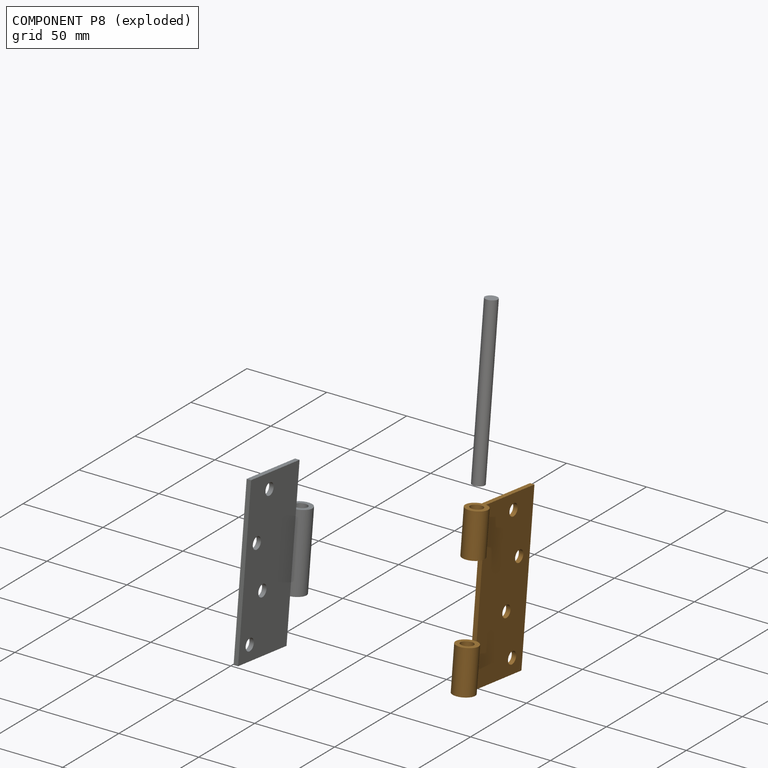
[diagram: component P8 — exploded]
COMPONENT P8 — geometry summary (no construction recipe available for this part):
  bounding box: 101.4 x 56.6 x 13.3 mm
  B-rep topology: 1 solid, 16 faces, 80 edges
  volume: 16778 mm^3 (22% of its bounding box)
  symmetry: mirror-symmetric across its z mid-plane
Held by: CYLINDRICAL mate "Cylindrical 1" to P4; CYLINDRICAL mate "Cylindrical 2" to P2; PARALLEL mate "Parallel 2" to P4.
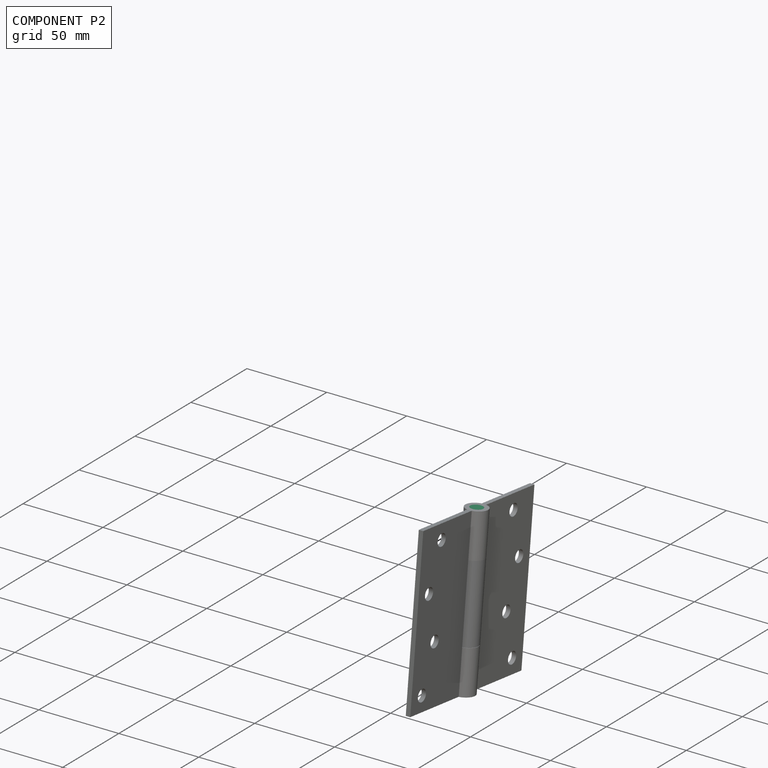
[diagram: component P2 — assembled]
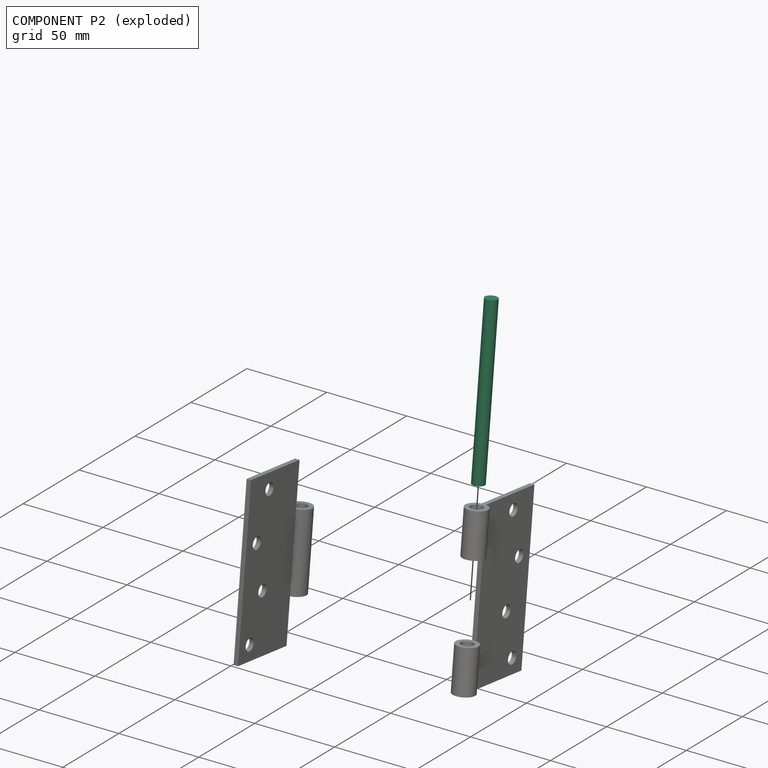
[diagram: component P2 — exploded]
COMPONENT P2 — recipe-attached (CADFS 00647209, mesh-verified: the recipe's output STEP matches this component's geometry to below the mesh-comparison resolution (tessellation chordal tolerance ~0.153 mm)).
Held by: CYLINDRICAL mate "Cylindrical 2" to P8.
Construction recipe (FeatureScript — the CAD program that rebuilds this solid; sketch coordinates are in the units given by the * unit suffixes, e.g. mm):

FeatureScript 1511;
import(path : "onshape/std/geometry.fs", version : "1511.0");
import(path : "onshape/std/common.fs", version : "1511.0");
const mm = millimeter;
const VERTEX = EntityType.VERTEX;
const EDGE = EntityType.EDGE;
const FACE = EntityType.FACE;
const BODY = EntityType.BODY;
function v(x, y){return vector(x, y);}
function OD(order){return orderDisambiguation(order);}
function OSD(set){return originalSetDisambiguation(set);}
function TD(topology){return topologyDisambiguation(topology);}
function TDD(query){return trueDependencyDisambiguation(query);}
function sQuery(a, b, c) {return sketchEntityQuery(a, b, c);}

annotation { "Feature Type Name" : "Feature", "Feature Type Description" : "" }
export const myFeature = defineFeature(function(context is Context, id is Id, definition is map)
    precondition{}
    {
        {
            var Q0;
            Q0=qCreatedBy(makeId("Front.planeOp"),FACE);
            var sketch = newSketch(context, id + "F0", { "sketchPlane" : qUnion([Q0])});
            skCircle(sketch, "E0", {"center": v(0, 0) * mm, "radius": 3.81 * mm});
            skSolve(sketch);
        }
        {
            var Q0;
            Q0 = qSketchRegion(id + "F0", true);
            extrude(context, id + "F1", {"entities" : qUnion([Q0]), "oppositeDirection" : true, "depth" : 50.7 * mm, "offsetDistance" : 25.4 * mm, "hasSecondDirection" : true, "secondDirectionOppositeDirection" : false, "secondDirectionDepth" : 50.7 * mm});
        }
    });
